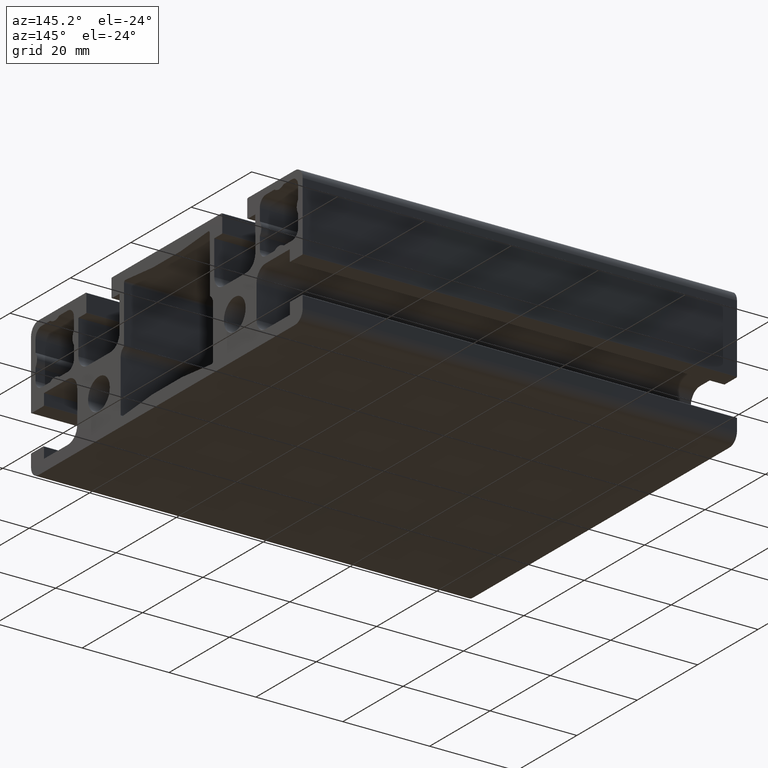
[diagram: clean part render]
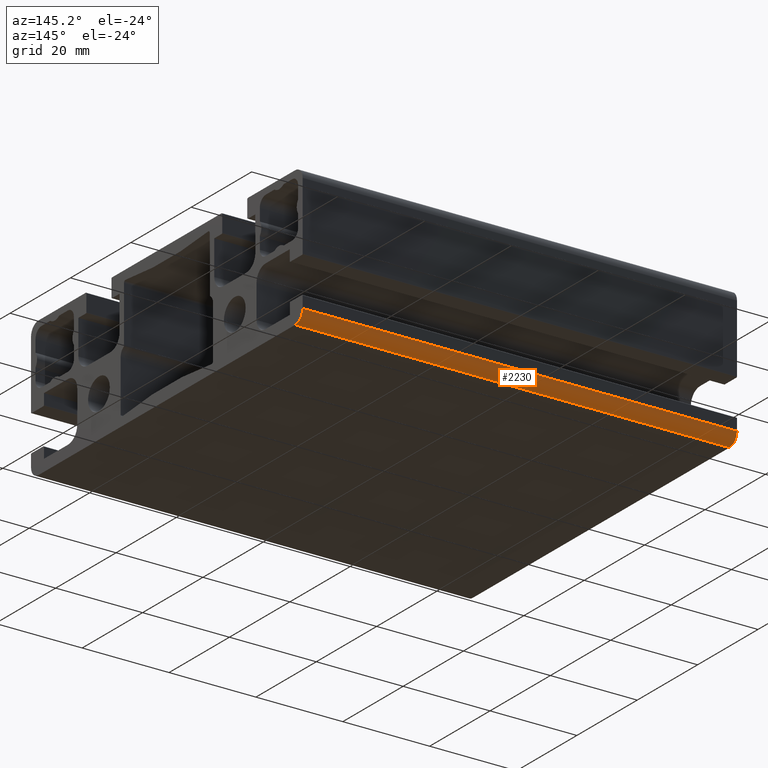
[diagram: same view with one face highlighted and labeled with its STEP entity id]
A machine part, auxiliary view. The second image highlights one B-rep face of the part: STEP entity #2230.
In plain terms, the highlighted cylindrical surface (edge-blend (fillet) strip) has radius 2.5 mm, axis along (1, 0, 0).
Its self-contained STEP definition (entity closure, byte-faithful):
#180=FACE_OUTER_BOUND('',#297,.T.);
#297=EDGE_LOOP('',(#1913,#1914,#1915,#1916));
#391=CIRCLE('',#2386,2.5);
#419=CIRCLE('',#2465,2.5);
#625=LINE('',#3756,#847);
#626=LINE('',#3760,#848);
#847=VECTOR('',#3085,10.);
#848=VECTOR('',#3090,10.);
#1012=VERTEX_POINT('',#3528);
#1013=VERTEX_POINT('',#3530);
#1075=VERTEX_POINT('',#3754);
#1076=VERTEX_POINT('',#3758);
#1278=EDGE_CURVE('',#1012,#1013,#391,.T.);
#1391=EDGE_CURVE('',#1075,#1012,#625,.T.);
#1392=EDGE_CURVE('',#1076,#1075,#419,.T.);
#1393=EDGE_CURVE('',#1076,#1013,#626,.T.);
#1913=ORIENTED_EDGE('',*,*,#1391,.F.);
#1914=ORIENTED_EDGE('',*,*,#1392,.F.);
#1915=ORIENTED_EDGE('',*,*,#1393,.T.);
#1916=ORIENTED_EDGE('',*,*,#1278,.F.);
#2127=CYLINDRICAL_SURFACE('',#2464,2.5);
#2230=ADVANCED_FACE('',(#180),#2127,.T.);
#2386=AXIS2_PLACEMENT_3D('',#3531,#2844,#2845);
#2464=AXIS2_PLACEMENT_3D('',#3757,#3086,#3087);
#2465=AXIS2_PLACEMENT_3D('',#3759,#3088,#3089);
#2844=DIRECTION('center_axis',(-1.,0.,0.));
#2845=DIRECTION('ref_axis',(0.,0.,1.));
#3085=DIRECTION('',(-1.,0.,0.));
#3086=DIRECTION('center_axis',(1.,0.,0.));
#3087=DIRECTION('ref_axis',(0.,0.,1.));
#3088=DIRECTION('center_axis',(1.,0.,0.));
#3089=DIRECTION('ref_axis',(0.,0.,1.));
#3090=DIRECTION('',(-1.,0.,0.));
#3528=CARTESIAN_POINT('',(-50.,45.,-13.5));
#3530=CARTESIAN_POINT('',(-50.,42.5,-16.));
#3531=CARTESIAN_POINT('Origin',(-50.,42.5,-13.5));
#3754=CARTESIAN_POINT('',(50.,45.,-13.5));
#3756=CARTESIAN_POINT('',(0.,45.,-13.5));
#3757=CARTESIAN_POINT('Origin',(0.,42.5,-13.5));
#3758=CARTESIAN_POINT('',(50.,42.5,-16.));
#3759=CARTESIAN_POINT('Origin',(50.,42.5,-13.5));
#3760=CARTESIAN_POINT('',(0.,42.5,-16.));